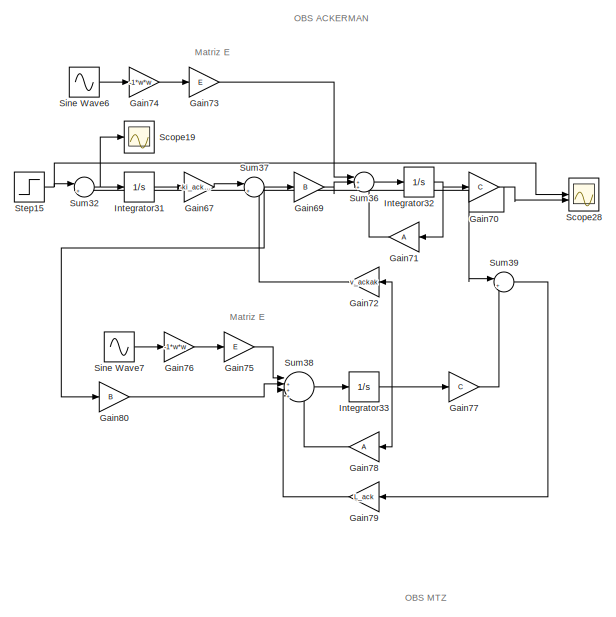
[diagram: root canvas - part 1/8, top left region]
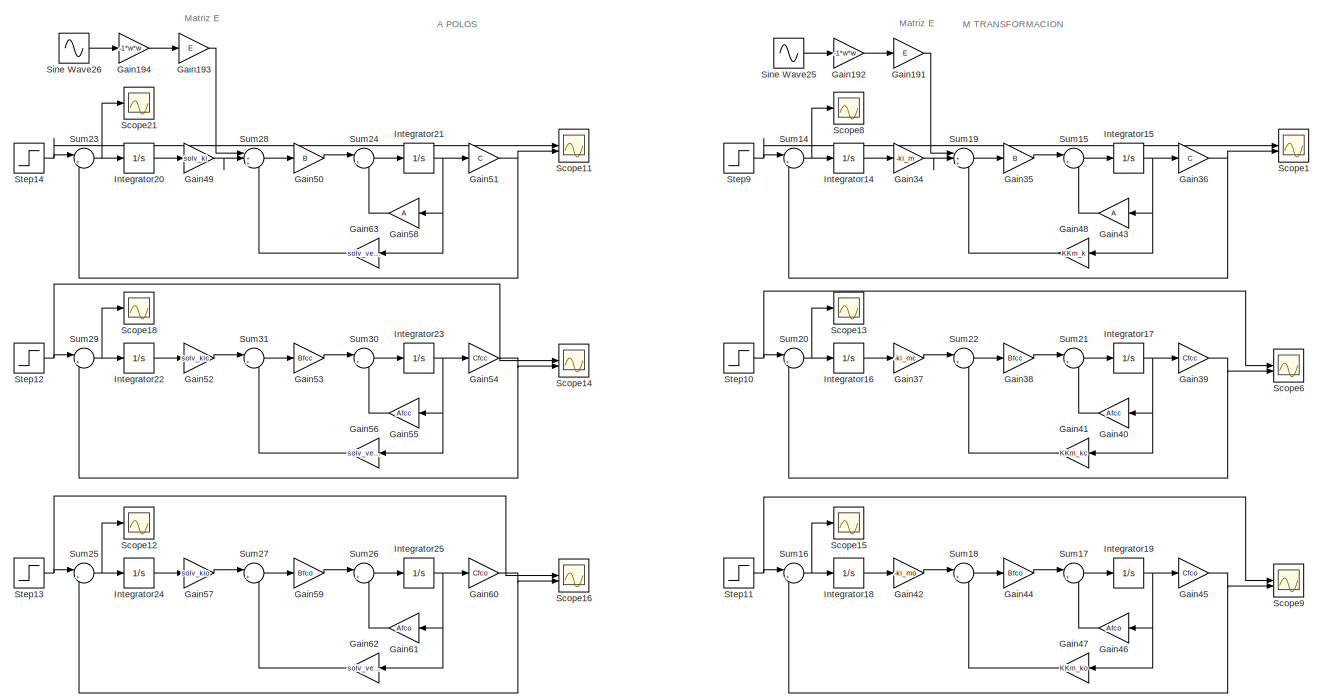
[diagram: root canvas - part 2/8, top center region]
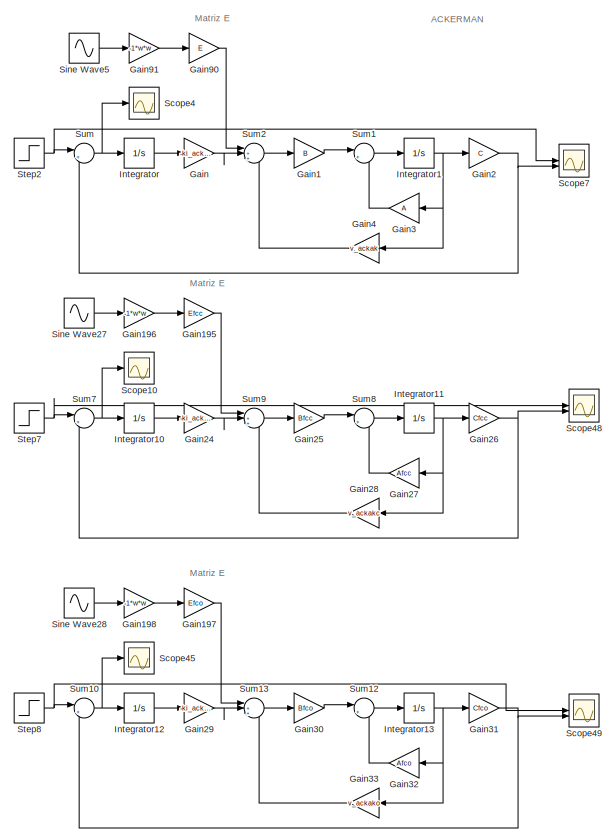
[diagram: root canvas - part 3/8, top center region]
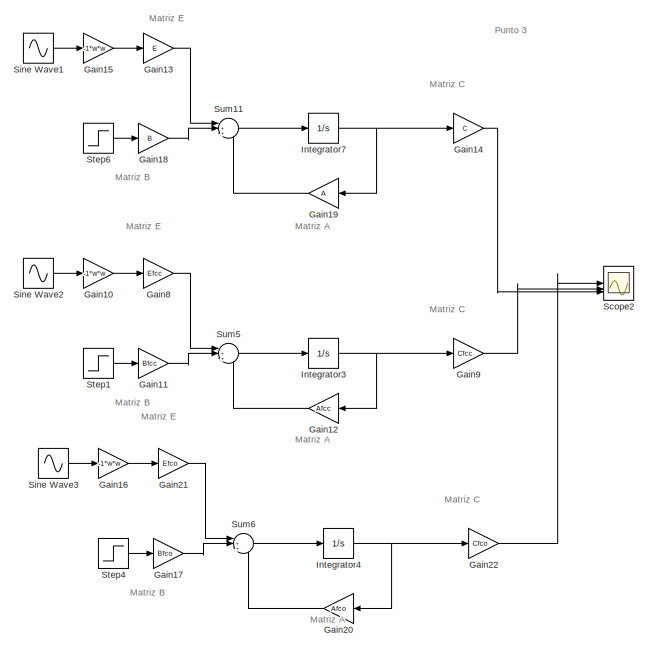
[diagram: root canvas - part 4/8, top right region]
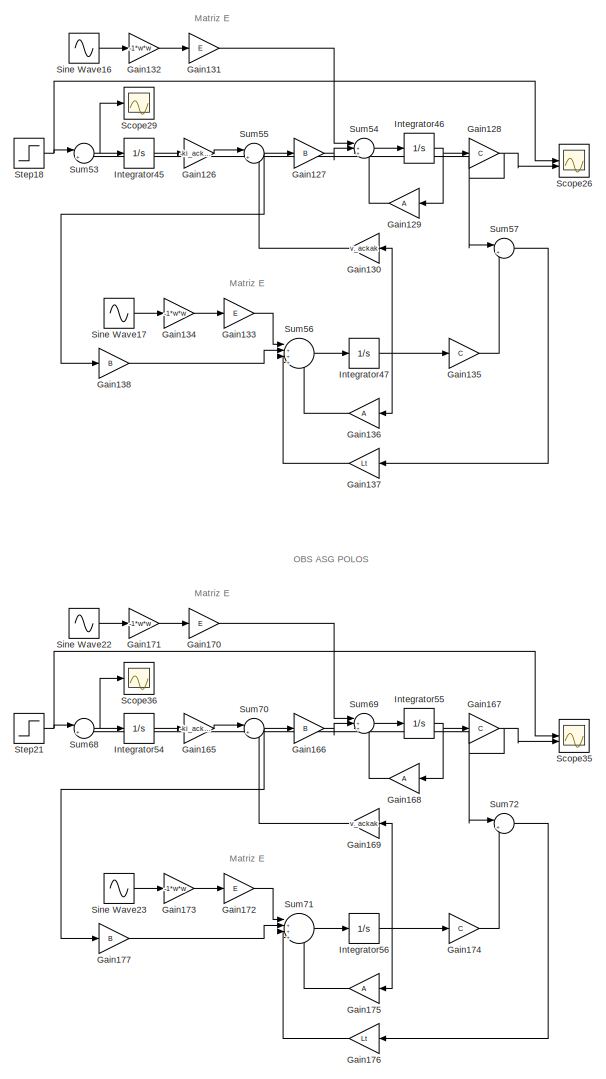
[diagram: root canvas - part 5/8, bottom left region]
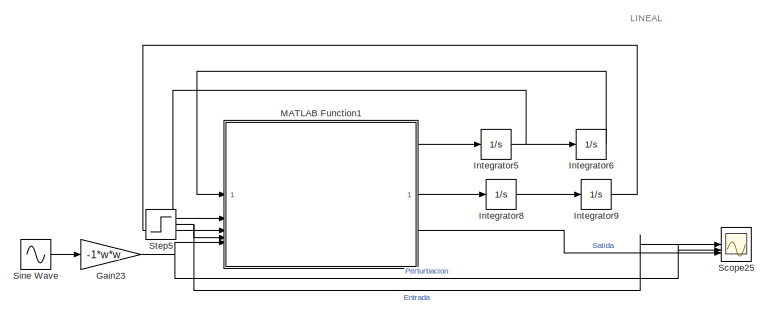
[diagram: root canvas - part 6/8, middle right region]
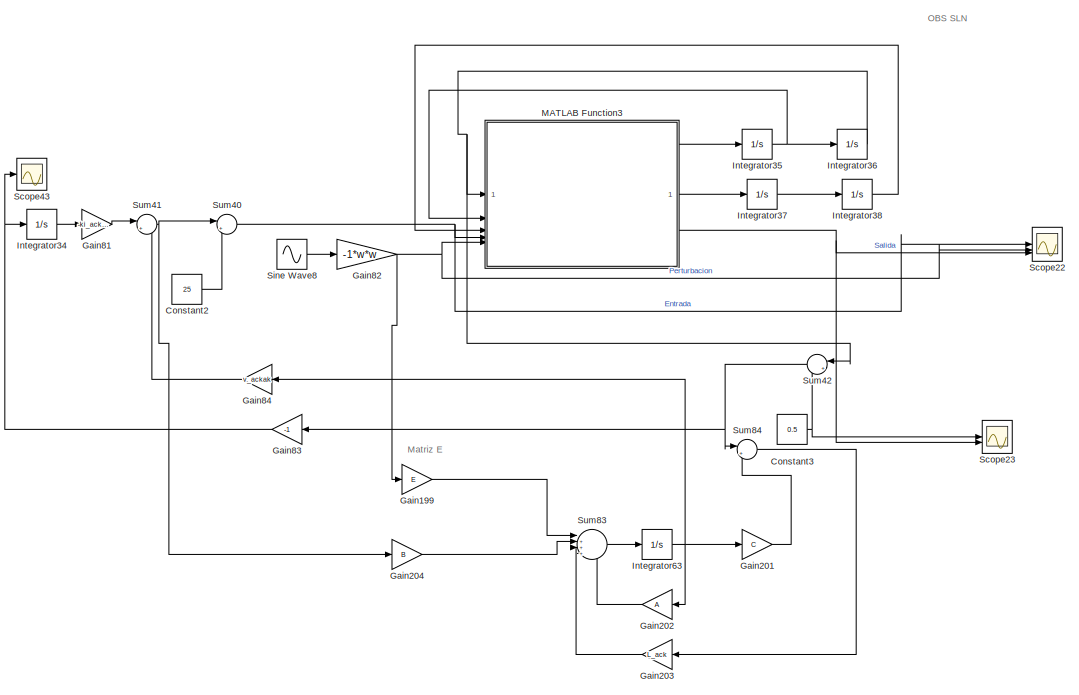
[diagram: root canvas - part 7/8, bottom center region]
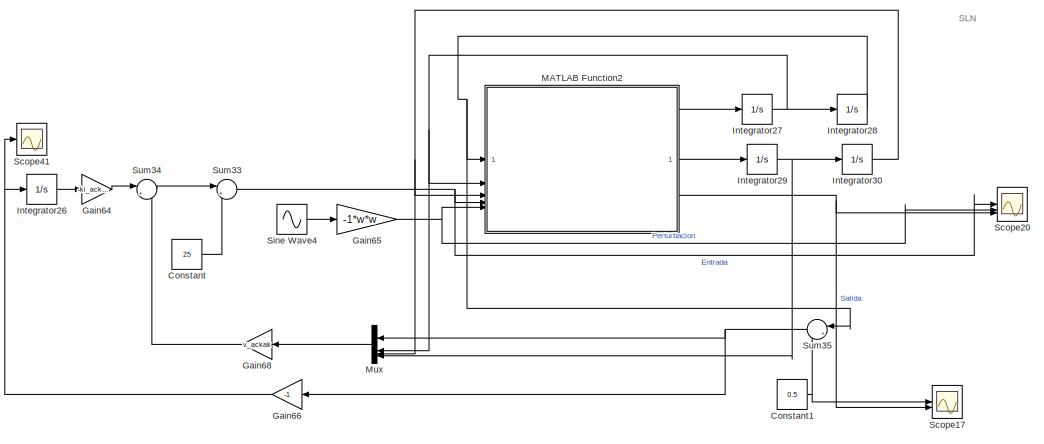
[diagram: root canvas - part 8/8, bottom left region]
MODEL slx_101e63c1fc20
KIND model
CONFIG AbsTol = auto
CONFIG EnableMultiTasking = off
CONFIG FixedStep = auto
CONFIG MaxStep = auto
CONFIG MinStep = auto
CONFIG RelTol = 1e-3
CONFIG SampleTimeConstraint = Unconstrained
CONFIG SolverName = VariableStepAuto
CONFIG StartTime = 0.0
CONFIG StopTime = 10
BLOCK [Constant] Constant
  Value = 25
BLOCK [Constant] Constant1
  Value = 0.5
BLOCK [Constant] Constant2
  Value = 25
BLOCK [Constant] Constant3
  Value = 0.5
BLOCK [Gain] Gain
  Gain = -ki_ackak
BLOCK [Gain] Gain1
  Gain = B
  Multiplication = Matrix(K*u)
BLOCK [Gain] Gain10
  Gain = -1*w*w
BLOCK [Gain] Gain11
  Gain = Bfcc
  Multiplication = Matrix(K*u)
BLOCK [Gain] Gain12
  Gain = Afcc
  Multiplication = Matrix(K*u)
  NameLocation = top
BLOCK [Gain] Gain126
  Gain = -ki_ackak
BLOCK [Gain] Gain127
  Gain = B
  Multiplication = Matrix(K*u)
BLOCK [Gain] Gain128
  Gain = C
  Multiplication = Matrix(K*u)
BLOCK [Gain] Gain129
  Gain = A
  Multiplication = Matrix(K*u)
  NameLocation = top
BLOCK [Gain] Gain13
  Gain = E
  Multiplication = Matrix(K*u)
BLOCK [Gain] Gain130
  Gain = v_ackak
  Multiplication = Matrix(K*u)
  NameLocation = top
BLOCK [Gain] Gain131
  Gain = E
  Multiplication = Matrix(K*u)
BLOCK [Gain] Gain132
  Gain = -1*w*w
BLOCK [Gain] Gain133
  Gain = E
  Multiplication = Matrix(K*u)
BLOCK [Gain] Gain134
  Gain = -1*w*w
BLOCK [Gain] Gain135
  Gain = C
  Multiplication = Matrix(K*u)
BLOCK [Gain] Gain136
  Gain = A
  Multiplication = Matrix(K*u)
  NameLocation = top
BLOCK [Gain] Gain137
  Gain = Lt
  Multiplication = Matrix(K*u)
  NameLocation = top
BLOCK [Gain] Gain138
  Gain = B
  Multiplication = Matrix(K*u)
BLOCK [Gain] Gain14
  Gain = C
  Multiplication = Matrix(K*u)
BLOCK [Gain] Gain15
  Gain = -1*w*w
BLOCK [Gain] Gain16
  Gain = -1*w*w
BLOCK [Gain] Gain165
  Gain = -ki_ackak
BLOCK [Gain] Gain166
  Gain = B
  Multiplication = Matrix(K*u)
BLOCK [Gain] Gain167
  Gain = C
  Multiplication = Matrix(K*u)
BLOCK [Gain] Gain168
  Gain = A
  Multiplication = Matrix(K*u)
  NameLocation = top
BLOCK [Gain] Gain169
  Gain = v_ackak
  Multiplication = Matrix(K*u)
  NameLocation = top
BLOCK [Gain] Gain17
  Gain = Bfco
  Multiplication = Matrix(K*u)
BLOCK [Gain] Gain170
  Gain = E
  Multiplication = Matrix(K*u)
BLOCK [Gain] Gain171
  Gain = -1*w*w
BLOCK [Gain] Gain172
  Gain = E
  Multiplication = Matrix(K*u)
BLOCK [Gain] Gain173
  Gain = -1*w*w
BLOCK [Gain] Gain174
  Gain = C
  Multiplication = Matrix(K*u)
BLOCK [Gain] Gain175
  Gain = A
  Multiplication = Matrix(K*u)
  NameLocation = top
BLOCK [Gain] Gain176
  Gain = Lt
  Multiplication = Matrix(K*u)
  NameLocation = top
BLOCK [Gain] Gain177
  Gain = B
  Multiplication = Matrix(K*u)
BLOCK [Gain] Gain18
  Gain = B
  Multiplication = Matrix(K*u)
BLOCK [Gain] Gain19
  Gain = A
  Multiplication = Matrix(K*u)
  NameLocation = top
BLOCK [Gain] Gain191
  Gain = E
  Multiplication = Matrix(K*u)
BLOCK [Gain] Gain192
  Gain = -1*w*w
BLOCK [Gain] Gain193
  Gain = E
  Multiplication = Matrix(K*u)
BLOCK [Gain] Gain194
  Gain = -1*w*w
BLOCK [Gain] Gain195
  Gain = Efcc
  Multiplication = Matrix(K*u)
BLOCK [Gain] Gain196
  Gain = -1*w*w
BLOCK [Gain] Gain197
  Gain = Efco
  Multiplication = Matrix(K*u)
BLOCK [Gain] Gain198
  Gain = -1*w*w
BLOCK [Gain] Gain199
  Gain = E
  Multiplication = Matrix(K*u)
BLOCK [Gain] Gain2
  Gain = C
  Multiplication = Matrix(K*u)
BLOCK [Gain] Gain20
  Gain = Afco
  Multiplication = Matrix(K*u)
  NameLocation = top
BLOCK [Gain] Gain201
  Gain = C
  Multiplication = Matrix(K*u)
BLOCK [Gain] Gain202
  Gain = A
  Multiplication = Matrix(K*u)
  NameLocation = top
BLOCK [Gain] Gain203
  Gain = L_ack
  Multiplication = Matrix(K*u)
  NameLocation = top
BLOCK [Gain] Gain204
  Gain = B
  Multiplication = Matrix(K*u)
BLOCK [Gain] Gain21
  Gain = Efco
  Multiplication = Matrix(K*u)
BLOCK [Gain] Gain22
  Gain = Cfco
  Multiplication = Matrix(K*u)
BLOCK [Gain] Gain23
  Gain = -1*w*w
BLOCK [Gain] Gain24
  Gain = -ki_ackakc
BLOCK [Gain] Gain25
  Gain = Bfcc
  Multiplication = Matrix(K*u)
BLOCK [Gain] Gain26
  Gain = Cfcc
  Multiplication = Matrix(K*u)
BLOCK [Gain] Gain27
  Gain = Afcc
  Multiplication = Matrix(K*u)
  NameLocation = top
BLOCK [Gain] Gain28
  Gain = v_ackakc
  Multiplication = Matrix(K*u)
  NameLocation = top
BLOCK [Gain] Gain29
  Gain = -ki_ackako
BLOCK [Gain] Gain3
  Gain = A
  Multiplication = Matrix(K*u)
  NameLocation = top
BLOCK [Gain] Gain30
  Gain = Bfco
  Multiplication = Matrix(K*u)
BLOCK [Gain] Gain31
  Gain = Cfco
  Multiplication = Matrix(K*u)
BLOCK [Gain] Gain32
  Gain = Afco
  Multiplication = Matrix(K*u)
  NameLocation = top
BLOCK [Gain] Gain33
  Gain = v_ackako
  Multiplication = Matrix(K*u)
  NameLocation = top
BLOCK [Gain] Gain34
  Gain = -ki_m
BLOCK [Gain] Gain35
  Gain = B
  Multiplication = Matrix(K*u)
BLOCK [Gain] Gain36
  Gain = C
  Multiplication = Matrix(K*u)
BLOCK [Gain] Gain37
  Gain = -ki_mc
BLOCK [Gain] Gain38
  Gain = Bfcc
  Multiplication = Matrix(K*u)
BLOCK [Gain] Gain39
  Gain = Cfcc
  Multiplication = Matrix(K*u)
BLOCK [Gain] Gain4
  Gain = v_ackak
  Multiplication = Matrix(K*u)
  NameLocation = top
BLOCK [Gain] Gain40
  Gain = Afcc
  Multiplication = Matrix(K*u)
  NameLocation = top
BLOCK [Gain] Gain41
  Gain = KKm_kc
  Multiplication = Matrix(K*u)
  NameLocation = top
BLOCK [Gain] Gain42
  Gain = -ki_mo
BLOCK [Gain] Gain43
  Gain = A
  Multiplication = Matrix(K*u)
  NameLocation = top
BLOCK [Gain] Gain44
  Gain = Bfco
  Multiplication = Matrix(K*u)
BLOCK [Gain] Gain45
  Gain = Cfco
  Multiplication = Matrix(K*u)
BLOCK [Gain] Gain46
  Gain = Afco
  Multiplication = Matrix(K*u)
  NameLocation = top
BLOCK [Gain] Gain47
  Gain = KKm_ko
  Multiplication = Matrix(K*u)
  NameLocation = top
BLOCK [Gain] Gain48
  Gain = KKm_k
  Multiplication = Matrix(K*u)
  NameLocation = top
BLOCK [Gain] Gain49
  Gain = solv_ki
BLOCK [Gain] Gain50
  Gain = B
  Multiplication = Matrix(K*u)
BLOCK [Gain] Gain51
  Gain = C
  Multiplication = Matrix(K*u)
BLOCK [Gain] Gain52
  Gain = solv_kic
BLOCK [Gain] Gain53
  Gain = Bfcc
  Multiplication = Matrix(K*u)
BLOCK [Gain] Gain54
  Gain = Cfcc
  Multiplication = Matrix(K*u)
BLOCK [Gain] Gain55
  Gain = Afcc
  Multiplication = Matrix(K*u)
  NameLocation = top
BLOCK [Gain] Gain56
  Gain = solv_vectorc
  Multiplication = Matrix(K*u)
  NameLocation = top
BLOCK [Gain] Gain57
  Gain = solv_kio
BLOCK [Gain] Gain58
  Gain = A
  Multiplication = Matrix(K*u)
  NameLocation = top
BLOCK [Gain] Gain59
  Gain = Bfco
  Multiplication = Matrix(K*u)
BLOCK [Gain] Gain60
  Gain = Cfco
  Multiplication = Matrix(K*u)
BLOCK [Gain] Gain61
  Gain = Afco
  Multiplication = Matrix(K*u)
  NameLocation = top
BLOCK [Gain] Gain62
  Gain = solv_vectoro
  Multiplication = Matrix(K*u)
  NameLocation = top
BLOCK [Gain] Gain63
  Gain = solv_vector
  Multiplication = Matrix(K*u)
  NameLocation = top
BLOCK [Gain] Gain64
  Gain = -ki_ackak
BLOCK [Gain] Gain65
  Gain = -1*w*w
BLOCK [Gain] Gain66
  Gain = -1
  NameLocation = top
BLOCK [Gain] Gain67
  Gain = -ki_ackak
BLOCK [Gain] Gain68
  Gain = v_ackak
  Multiplication = Matrix(K*u)
  NameLocation = top
BLOCK [Gain] Gain69
  Gain = B
  Multiplication = Matrix(K*u)
BLOCK [Gain] Gain70
  Gain = C
  Multiplication = Matrix(K*u)
BLOCK [Gain] Gain71
  Gain = A
  Multiplication = Matrix(K*u)
  NameLocation = top
BLOCK [Gain] Gain72
  Gain = v_ackak
  Multiplication = Matrix(K*u)
  NameLocation = top
BLOCK [Gain] Gain73
  Gain = E
  Multiplication = Matrix(K*u)
BLOCK [Gain] Gain74
  Gain = -1*w*w
BLOCK [Gain] Gain75
  Gain = E
  Multiplication = Matrix(K*u)
BLOCK [Gain] Gain76
  Gain = -1*w*w
BLOCK [Gain] Gain77
  Gain = C
  Multiplication = Matrix(K*u)
BLOCK [Gain] Gain78
  Gain = A
  Multiplication = Matrix(K*u)
  NameLocation = top
BLOCK [Gain] Gain79
  Gain = L_ack
  Multiplication = Matrix(K*u)
  NameLocation = top
BLOCK [Gain] Gain8
  Gain = Efcc
  Multiplication = Matrix(K*u)
BLOCK [Gain] Gain80
  Gain = B
  Multiplication = Matrix(K*u)
BLOCK [Gain] Gain81
  Gain = -ki_ackak
BLOCK [Gain] Gain82
  Gain = -1*w*w
BLOCK [Gain] Gain83
  Gain = -1
  NameLocation = top
BLOCK [Gain] Gain84
  Gain = v_ackak
  Multiplication = Matrix(K*u)
  NameLocation = top
BLOCK [Gain] Gain9
  Gain = Cfcc
  Multiplication = Matrix(K*u)
BLOCK [Gain] Gain90
  Gain = E
  Multiplication = Matrix(K*u)
BLOCK [Gain] Gain91
  Gain = -1*w*w
BLOCK [Integrator] Integrator
BLOCK [Integrator] Integrator1
BLOCK [Integrator] Integrator10
BLOCK [Integrator] Integrator11
BLOCK [Integrator] Integrator12
BLOCK [Integrator] Integrator13
BLOCK [Integrator] Integrator14
BLOCK [Integrator] Integrator15
BLOCK [Integrator] Integrator16
BLOCK [Integrator] Integrator17
BLOCK [Integrator] Integrator18
BLOCK [Integrator] Integrator19
BLOCK [Integrator] Integrator20
BLOCK [Integrator] Integrator21
BLOCK [Integrator] Integrator22
BLOCK [Integrator] Integrator23
BLOCK [Integrator] Integrator24
BLOCK [Integrator] Integrator25
BLOCK [Integrator] Integrator26
BLOCK [Integrator] Integrator27
BLOCK [Integrator] Integrator28
BLOCK [Integrator] Integrator29
BLOCK [Integrator] Integrator3
BLOCK [Integrator] Integrator30
BLOCK [Integrator] Integrator31
BLOCK [Integrator] Integrator32
BLOCK [Integrator] Integrator33
BLOCK [Integrator] Integrator34
BLOCK [Integrator] Integrator35
BLOCK [Integrator] Integrator36
  InitialCondition = 0.49
BLOCK [Integrator] Integrator37
BLOCK [Integrator] Integrator38
BLOCK [Integrator] Integrator4
BLOCK [Integrator] Integrator45
BLOCK [Integrator] Integrator46
BLOCK [Integrator] Integrator47
BLOCK [Integrator] Integrator5
BLOCK [Integrator] Integrator54
BLOCK [Integrator] Integrator55
BLOCK [Integrator] Integrator56
BLOCK [Integrator] Integrator6
BLOCK [Integrator] Integrator63
  InitialCondition = [0.49 0 0 0]
BLOCK [Integrator] Integrator7
BLOCK [Integrator] Integrator8
BLOCK [Integrator] Integrator9
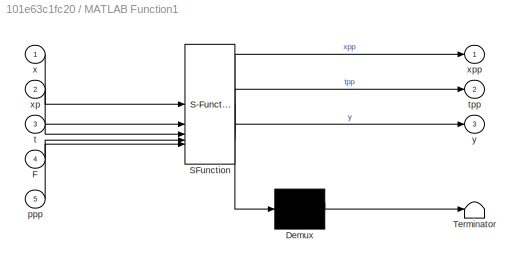
BLOCK [SubSystem] MATLAB Function1
  ErrorFcn = Stateflow.Translate.translate
  PermitHierarchicalResolution = ExplicitOnly
  SFBlockType = MATLAB Function
  TreatAsAtomicUnit = on
BLOCK [Demux] MATLAB Function1/ Demux 
  Outputs = 1
BLOCK [S-Function] MATLAB Function1/ SFunction 
  EnableBusSupport = off
  FunctionName = sf_sfun
  PortCounts = [5 4]
  SFcnIsStateOwnerBlock = off
  SFunctionDeploymentMode = off
  Tag = Stateflow S-Function 1
BLOCK [Terminator] MATLAB Function1/ Terminator 
BLOCK [Inport] MATLAB Function1/F
  Port = 4
BLOCK [Inport] MATLAB Function1/ppp
  Port = 5
BLOCK [Inport] MATLAB Function1/t
  Port = 3
BLOCK [Outport] MATLAB Function1/tpp
  Port = 2
BLOCK [Inport] MATLAB Function1/x
BLOCK [Inport] MATLAB Function1/xp
  Port = 2
BLOCK [Outport] MATLAB Function1/xpp
BLOCK [Outport] MATLAB Function1/y
  Port = 3
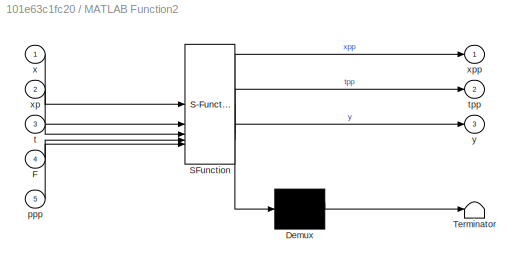
BLOCK [SubSystem] MATLAB Function2
  ErrorFcn = Stateflow.Translate.translate
  PermitHierarchicalResolution = ExplicitOnly
  SFBlockType = MATLAB Function
  TreatAsAtomicUnit = on
BLOCK [Demux] MATLAB Function2/ Demux 
  Outputs = 1
BLOCK [S-Function] MATLAB Function2/ SFunction 
  EnableBusSupport = off
  FunctionName = sf_sfun
  PortCounts = [5 4]
  SFcnIsStateOwnerBlock = off
  SFunctionDeploymentMode = off
  Tag = Stateflow S-Function 2
BLOCK [Terminator] MATLAB Function2/ Terminator 
BLOCK [Inport] MATLAB Function2/F
  Port = 4
BLOCK [Inport] MATLAB Function2/ppp
  Port = 5
BLOCK [Inport] MATLAB Function2/t
  Port = 3
BLOCK [Outport] MATLAB Function2/tpp
  Port = 2
BLOCK [Inport] MATLAB Function2/x
BLOCK [Inport] MATLAB Function2/xp
  Port = 2
BLOCK [Outport] MATLAB Function2/xpp
BLOCK [Outport] MATLAB Function2/y
  Port = 3
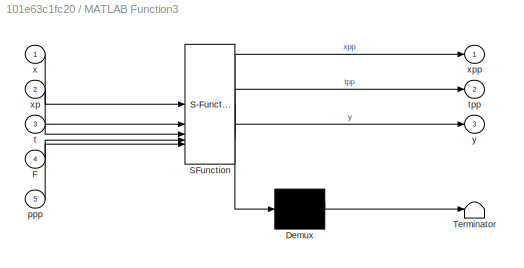
BLOCK [SubSystem] MATLAB Function3
  ErrorFcn = Stateflow.Translate.translate
  PermitHierarchicalResolution = ExplicitOnly
  SFBlockType = MATLAB Function
  TreatAsAtomicUnit = on
BLOCK [Demux] MATLAB Function3/ Demux 
  Outputs = 1
BLOCK [S-Function] MATLAB Function3/ SFunction 
  EnableBusSupport = off
  FunctionName = sf_sfun
  PortCounts = [5 4]
  SFcnIsStateOwnerBlock = off
  SFunctionDeploymentMode = off
  Tag = Stateflow S-Function 3
BLOCK [Terminator] MATLAB Function3/ Terminator 
BLOCK [Inport] MATLAB Function3/F
  Port = 4
BLOCK [Inport] MATLAB Function3/ppp
  Port = 5
BLOCK [Inport] MATLAB Function3/t
  Port = 3
BLOCK [Outport] MATLAB Function3/tpp
  Port = 2
BLOCK [Inport] MATLAB Function3/x
BLOCK [Inport] MATLAB Function3/xp
  Port = 2
BLOCK [Outport] MATLAB Function3/xpp
BLOCK [Outport] MATLAB Function3/y
  Port = 3
BLOCK [Mux] Mux
  DisplayOption = bar
  NameLocation = top
BLOCK [Scope] Scope1
  ActiveDisplayYMaximum = 0.031291334113195061
  ActiveDisplayYMinimum = -0.003476814901466117
  DataLoggingVariableName = ScopeData5
  Floating = off
  GraphicalSettings = {"Style":{"BackgroundColor":[1,1,1],"AxesColor":[1,1,1],"LabelsColor":[0.14901960784313725,0.14901960784313725,0.14901960784313725],"PreserveColors":false,"Visible":[true],"LineStyle":["-"],"LineWidth":[1.5],"BarWidth":[0.9],"LineColor":[[1,0,0]],"LineFaceAlpha":[1],"LineEdgeAlpha":[1],"Marker":["none"],"FontSize":8.5,"LineTrueColor":[[1,0,0]],"ChannelNames":[""],"DefaultLegendLabel":["Transfer Fc...<+1944ch>  <repeated x20 — deduplicated; at blocks: Scope1, Scope10, Scope12, Scope13, Scope14, Scope15, Scope16, Scope18, Scope19, Scope21, Scope29, Scope36, Scope41, Scope43, Scope45, Scope48, +4 more>
  MultipleDisplayCache = [{"MaxYLimMag":0.031291334113195061,"MaxYLimReal":0.031291334113195061,"MinYLimMag":0,"MinYLimReal":-0.003476814901466117,"PlotAsMagnitudePhase":false,"ShowGrid":true,"ShowLegend":true,"Title":"%<SignalLabel>","YLabel":""}]  <repeated x21 — deduplicated; at blocks: Scope1, Scope10, Scope12, Scope13, Scope14, Scope15, Scope16, Scope18, Scope19, Scope21, Scope29, Scope35, Scope36, Scope41, Scope43, Scope45, +5 more>
  NumInputPorts = 2
  ScopeFrameLocation = window
  ShowLegend = on
  WasSavedAsWebScope = on
  WindowPosition = [488.000000,222.000000,560.000000,420.000000,]
BLOCK [Scope] Scope10
  ActiveDisplayYMaximum = 0.031291334113195061
  ActiveDisplayYMinimum = -0.003476814901466117
  DataLoggingVariableName = ScopeData8
  Floating = off
  NumInputPorts = 1
  ScopeFrameLocation = window
  ShowLegend = on
  WasSavedAsWebScope = on
  WindowPosition = [488.000000,222.000000,560.000000,420.000000,]
BLOCK [Scope] Scope11
  ActiveDisplayYMaximum = 1.2431567136625485
  ActiveDisplayYMinimum = -0.13816841713158609
  DataLoggingVariableName = ScopeData10
  Floating = off
  GraphicalSettings = {"AxesScalingProperties":{"AlignXAxis":"Center","AlignYAxis":"Center","AutoScaleXAxisLimits":false,"AxesScaling":"Manual","AxesScalingNumUpdates":10,"ExpandOnly":true,"ScaleAxesLimitsAtStop":false,"XAxisDataRange":100,"YAxisDataRange":80},"DisplayProperties":{"ColorOrder":["auto","auto","auto","auto","auto","auto","auto","auto","auto","auto","auto","auto","auto","auto","auto","auto","auto","auto",...<+2329ch>
  MultipleDisplayCache = [{"MaxYLimMag":1.2431567136625485,"MaxYLimReal":1.2431567136625485,"MinYLimMag":0,"MinYLimReal":-0.13816841713158609,"PlotAsMagnitudePhase":false,"ShowGrid":true,"ShowLegend":true,"Title":"%<SignalLabel>","YLabel":""}]
  NumInputPorts = 2
  ScopeFrameLocation = window
  ShowLegend = on
  WasSavedAsWebScope = on
  WindowPosition = [488.000000,222.000000,560.000000,420.000000,]
BLOCK [Scope] Scope12
  ActiveDisplayYMaximum = 0.031291334113195061
  ActiveDisplayYMinimum = -0.003476814901466117
  DataLoggingVariableName = ScopeData11
  Floating = off
  NumInputPorts = 1
  ScopeFrameLocation = window
  ShowLegend = on
  WasSavedAsWebScope = on
  WindowPosition = [488.000000,222.000000,560.000000,420.000000,]
BLOCK [Scope] Scope13
  ActiveDisplayYMaximum = 0.031291334113195061
  ActiveDisplayYMinimum = -0.003476814901466117
  DataLoggingVariableName = ScopeData12
  Floating = off
  NumInputPorts = 1
  ScopeFrameLocation = window
  ShowLegend = on
  WasSavedAsWebScope = on
  WindowPosition = [488.000000,222.000000,560.000000,420.000000,]
BLOCK [Scope] Scope14
  ActiveDisplayYMaximum = 0.031291334113195061
  ActiveDisplayYMinimum = -0.003476814901466117
  DataLoggingVariableName = ScopeData13
  Floating = off
  NumInputPorts = 2
  ScopeFrameLocation = window
  ShowLegend = on
  WasSavedAsWebScope = on
  WindowPosition = [488.000000,222.000000,560.000000,420.000000,]
BLOCK [Scope] Scope15
  ActiveDisplayYMaximum = 0.031291334113195061
  ActiveDisplayYMinimum = -0.003476814901466117
  DataLoggingVariableName = ScopeData14
  Floating = off
  NumInputPorts = 1
  ScopeFrameLocation = window
  ShowLegend = on
  WasSavedAsWebScope = on
  WindowPosition = [488.000000,222.000000,560.000000,420.000000,]
BLOCK [Scope] Scope16
  ActiveDisplayYMaximum = 0.031291334113195061
  ActiveDisplayYMinimum = -0.003476814901466117
  DataLoggingVariableName = ScopeData15
  Floating = off
  NumInputPorts = 2
  ScopeFrameLocation = window
  ShowLegend = on
  WasSavedAsWebScope = on
  WindowPosition = [488.000000,222.000000,560.000000,420.000000,]
BLOCK [Scope] Scope17
  ActiveDisplayYMaximum = 2.1401377093054168
  ActiveDisplayYMinimum = -0.23779307881171294
  DataLoggingVariableName = ScopeData16
  Floating = off
  GraphicalSettings = {"Style":{"BackgroundColor":[1,1,1],"AxesColor":[1,1,1],"LabelsColor":[0.14901960784313725,0.14901960784313725,0.14901960784313725],"PreserveColors":false,"Visible":[true,true],"LineStyle":["-","-"],"LineWidth":[1.5,1.5],"BarWidth":[0.9,0.9],"LineColor":[[1,0,0],"auto"],"LineFaceAlpha":[1,1],"LineEdgeAlpha":[1,1],"Marker":["none","none"],"FontSize":8.5,"LineTrueColor":[[1,0,0],[0.06666666666666667...<+1975ch>
  MultipleDisplayCache = [{"MaxYLimMag":2.1401377093054168,"MaxYLimReal":2.1401377093054168,"MinYLimMag":0,"MinYLimReal":-0.23779307881171294,"PlotAsMagnitudePhase":false,"ShowGrid":true,"ShowLegend":true,"Title":"%<SignalLabel>","YLabel":""}]
  NumInputPorts = 2
  ScopeFrameLocation = window
  ShowLegend = on
  WasSavedAsWebScope = on
  WindowPosition = [488.000000,222.000000,560.000000,420.000000,]
BLOCK [Scope] Scope18
  ActiveDisplayYMaximum = 0.031291334113195061
  ActiveDisplayYMinimum = -0.003476814901466117
  DataLoggingVariableName = ScopeData17
  Floating = off
  NumInputPorts = 1
  ScopeFrameLocation = window
  ShowLegend = on
  WasSavedAsWebScope = on
  WindowPosition = [488.000000,222.000000,560.000000,420.000000,]
BLOCK [Scope] Scope19
  ActiveDisplayYMaximum = 0.031291334113195061
  ActiveDisplayYMinimum = -0.003476814901466117
  DataLoggingVariableName = ScopeData18
  Floating = off
  NumInputPorts = 1
  ScopeFrameLocation = window
  ShowLegend = on
  WasSavedAsWebScope = on
  WindowPosition = [488.000000,222.000000,560.000000,420.000000,]
BLOCK [Scope] Scope2
  ActiveDisplayYMaximum = 0.11682406199814867
  ActiveDisplayYMinimum = -0.084773985516782557
  DataLoggingVariableName = ScopeData2
  Floating = off
  GraphicalSettings = {"AxesScalingProperties":{"AlignXAxis":"Center","AlignYAxis":"Center","AutoScaleXAxisLimits":false,"AxesScaling":"Manual","AxesScalingNumUpdates":10,"ExpandOnly":true,"ScaleAxesLimitsAtStop":false,"XAxisDataRange":100,"YAxisDataRange":80},"DisplayProperties":{"ColorOrder":["auto","auto","auto","auto","auto","auto","auto","auto","auto","auto","auto","auto","auto","auto","auto","auto","auto","auto",...<+2076ch>
  MultipleDisplayCache = [{"MaxYLimMag":0.11682406199814867,"MaxYLimReal":0.11682406199814867,"MinYLimMag":0,"MinYLimReal":-0.084773985516782557,"PlotAsMagnitudePhase":false,"ShowGrid":true,"ShowLegend":true,"Title":"%<SignalLabel>","YLabel":""}]
  NumInputPorts = 3
  ScopeFrameLocation = window
  ShowLegend = on
  WasSavedAsWebScope = on
  WindowPosition = [761.000000,238.000000,560.000000,420.000000,]
BLOCK [Scope] Scope20
  ActiveDisplayYMaximum = 21624.503578836546
  ActiveDisplayYMinimum = -6730.6239526479867
  DataLoggingVariableName = ScopeData19
  Floating = off
  GraphicalSettings = {"Style":{"BackgroundColor":[1,1,1],"AxesColor":[1,1,1],"LabelsColor":[0.14901960784313725,0.14901960784313725,0.14901960784313725],"PreserveColors":false,"Visible":[true,true,true],"LineStyle":["-","-","-"],"LineWidth":[1.5,1.5,1.5],"BarWidth":[0.9,0.9,0.9],"LineColor":[[1,0,0],"auto","auto"],"LineFaceAlpha":[1,1,1],"LineEdgeAlpha":[1,1,1],"Marker":["none","none","none"],"FontSize":8.5,"LineTrueC...<+2080ch>
  MultipleDisplayCache = [{"MaxYLimMag":21624.503578836546,"MaxYLimReal":21624.503578836546,"MinYLimMag":0,"MinYLimReal":-6730.6239526479867,"PlotAsMagnitudePhase":false,"ShowGrid":true,"ShowLegend":true,"Title":"%<SignalLabel>","YLabel":""}]
  NumInputPorts = 3
  ScopeFrameLocation = window
  ShowLegend = on
  WasSavedAsWebScope = on
  WindowPosition = [488.000000,222.000000,560.000000,420.000000,]
BLOCK [Scope] Scope21
  ActiveDisplayYMaximum = 0.031291334113195061
  ActiveDisplayYMinimum = -0.003476814901466117
  DataLoggingVariableName = ScopeData20
  Floating = off
  NumInputPorts = 1
  ScopeFrameLocation = window
  ShowLegend = on
  WasSavedAsWebScope = on
  WindowPosition = [488.000000,222.000000,560.000000,420.000000,]
BLOCK [Scope] Scope22
  ActiveDisplayYMaximum = 1
  ActiveDisplayYMinimum = -1
  DataLoggingVariableName = ScopeData21
  Floating = off
  GraphicalSettings = {"Style":{"BackgroundColor":[1,1,1],"AxesColor":[1,1,1],"LabelsColor":[0.14901960784313725,0.14901960784313725,0.14901960784313725],"PreserveColors":false,"Visible":[true,true,true],"LineStyle":["-","-","-"],"LineWidth":[1.5,1.5,1.5],"BarWidth":[0.9,0.9,0.9],"LineColor":[[1,0,0],"auto","auto"],"LineFaceAlpha":[1,1,1],"LineEdgeAlpha":[1,1,1],"Marker":["none","none","none"],"FontSize":8.5,"LineTrueC...<+2107ch>
  MultipleDisplayCache = [{"MaxYLimMag":1,"MaxYLimReal":1,"MinYLimMag":0,"MinYLimReal":-1,"PlotAsMagnitudePhase":false,"ShowGrid":true,"ShowLegend":true,"Title":"%<SignalLabel>","YLabel":""}]
  NumInputPorts = 3
  ScopeFrameLocation = window
  ShowLegend = on
  WasSavedAsWebScope = on
  WindowPosition = [488.000000,222.000000,560.000000,420.000000,]
BLOCK [Scope] Scope23
  ActiveDisplayYMaximum = 4.8841758745875857E+112
  ActiveDisplayYMinimum = -1.2616224962283068E+113
  DataLoggingVariableName = ScopeData22
  Floating = off
  GraphicalSettings = {"Style":{"BackgroundColor":[1,1,1],"AxesColor":[1,1,1],"LabelsColor":[0.14901960784313725,0.14901960784313725,0.14901960784313725],"PreserveColors":false,"Visible":[true,true],"LineStyle":["-","-"],"LineWidth":[1.5,1.5],"BarWidth":[0.9,0.9],"LineColor":[[1,0,0],"auto"],"LineFaceAlpha":[1,1],"LineEdgeAlpha":[1,1],"Marker":["none","none"],"FontSize":8.5,"LineTrueColor":[[1,0,0],[0.06666666666666667...<+2002ch>
  MultipleDisplayCache = [{"MaxYLimMag":1.05758221158901E+113,"MaxYLimReal":4.8841758745875857E+112,"MinYLimMag":0,"MinYLimReal":-1.2616224962283068E+113,"PlotAsMagnitudePhase":false,"ShowGrid":true,"ShowLegend":true,"Title":"%<SignalLabel>","YLabel":""}]
  NumInputPorts = 2
  ScopeFrameLocation = window
  ShowLegend = on
  WasSavedAsWebScope = on
  WindowPosition = [488.000000,222.000000,560.000000,420.000000,]
BLOCK [Scope] Scope25
  ActiveDisplayYMaximum = 1.2498905504508298
  ActiveDisplayYMinimum = -1.2499459508185906
  DataLoggingVariableName = ScopeData24
  Floating = off
  GraphicalSettings = {"Style":{"BackgroundColor":[1,1,1],"AxesColor":[1,1,1],"LabelsColor":[0.14901960784313725,0.14901960784313725,0.14901960784313725],"PreserveColors":false,"Visible":[true,true,true],"LineStyle":["-","-","-"],"LineWidth":[1.5,1.5,1.5],"BarWidth":[0.9,0.9,0.9],"LineColor":[[1,0,0],"auto","auto"],"LineFaceAlpha":[1,1,1],"LineEdgeAlpha":[1,1,1],"Marker":["none","none","none"],"FontSize":8.5,"LineTrueC...<+2081ch>
  MultipleDisplayCache = [{"MaxYLimMag":1.2499459508185906,"MaxYLimReal":1.2498905504508298,"MinYLimMag":0,"MinYLimReal":-1.2499459508185906,"PlotAsMagnitudePhase":false,"ShowGrid":true,"ShowLegend":true,"Title":"%<SignalLabel>","YLabel":""}]
  NumInputPorts = 3
  ScopeFrameLocation = window
  ShowLegend = on
  WasSavedAsWebScope = on
  WindowPosition = [488.000000,222.000000,560.000000,420.000000,]
BLOCK [Scope] Scope26
  ActiveDisplayYMaximum = 1.2437843122650145
  ActiveDisplayYMinimum = -0.1383306354661899
  DataLoggingVariableName = ScopeData25
  Floating = off
  GraphicalSettings = {"Style":{"BackgroundColor":[1,1,1],"AxesColor":[1,1,1],"LabelsColor":[0.14901960784313725,0.14901960784313725,0.14901960784313725],"PreserveColors":false,"Visible":[true,true],"LineStyle":["-","-"],"LineWidth":[1.5,1.5],"BarWidth":[0.9,0.9],"LineColor":[[1,0,0],[0.06666666666666667,0.44313725490196076,0.7450980392156863]],"LineFaceAlpha":[1,1],"LineEdgeAlpha":[1,1],"Marker":["none","none"],"FontS...<+1925ch>
  MultipleDisplayCache = [{"MaxYLimMag":1.2437843122650145,"MaxYLimReal":1.2437843122650145,"MinYLimMag":0,"MinYLimReal":-0.1383306354661899,"PlotAsMagnitudePhase":false,"ShowGrid":true,"ShowLegend":true,"Title":"%<SignalLabel>","YLabel":""}]
  NumInputPorts = 2
  ScopeFrameLocation = window
  ShowLegend = on
  WasSavedAsWebScope = on
  WindowPosition = [488.000000,222.000000,560.000000,420.000000,]
BLOCK [Scope] Scope28
  ActiveDisplayYMaximum = 1.2437843122646124
  ActiveDisplayYMinimum = -0.1383306354661453
  DataLoggingVariableName = ScopeData27
  Floating = off
  GraphicalSettings = {"Style":{"BackgroundColor":[1,1,1],"AxesColor":[1,1,1],"LabelsColor":[0.14901960784313725,0.14901960784313725,0.14901960784313725],"PreserveColors":false,"Visible":[true,true],"LineStyle":["-","-"],"LineWidth":[1.5,1.5],"BarWidth":[0.9,0.9],"LineColor":[[1,0,0],"auto"],"LineFaceAlpha":[1,1],"LineEdgeAlpha":[1,1],"Marker":["none","none"],"FontSize":8.5,"LineTrueColor":[[1,0,0],[0.06666666666666667...<+1869ch>
  MultipleDisplayCache = [{"MaxYLimMag":1.2437843122646124,"MaxYLimReal":1.2437843122646124,"MinYLimMag":0,"MinYLimReal":-0.1383306354661453,"PlotAsMagnitudePhase":false,"ShowGrid":true,"ShowLegend":true,"Title":"%<SignalLabel>","YLabel":""}]
  NumInputPorts = 2
  ScopeFrameLocation = window
  ShowLegend = on
  WasSavedAsWebScope = on
  WindowPosition = [582.000000,14.000000,560.000000,420.000000,]
BLOCK [Scope] Scope29
  ActiveDisplayYMaximum = 0.031291334113195061
  ActiveDisplayYMinimum = -0.003476814901466117
  DataLoggingVariableName = ScopeData28
  Floating = off
  NumInputPorts = 1
  ScopeFrameLocation = window
  ShowLegend = on
  WasSavedAsWebScope = on
  WindowPosition = [488.000000,222.000000,560.000000,420.000000,]
BLOCK [Scope] Scope35
  ActiveDisplayYMaximum = 0.031291334113195061
  ActiveDisplayYMinimum = -0.003476814901466117
  DataLoggingVariableName = ScopeData34
  Floating = off
  GraphicalSettings = {"Style":{"BackgroundColor":[1,1,1],"AxesColor":[1,1,1],"LabelsColor":[0.14901960784313725,0.14901960784313725,0.14901960784313725],"PreserveColors":false,"Visible":[true,true,true,true,true,true,true],"LineStyle":["-","-","-","-","-","-","-"],"LineWidth":[1.5,1.5,1.5,1.5,1.5,1.5,1.5],"BarWidth":[0.9,0.9,0.9,0.9,0.9,0.9,0.9],"LineColor":[[1,0,0],[0.06666666666666667,0.44313725490196076,0.745098039...<+2456ch>
  NumInputPorts = 2
  ScopeFrameLocation = window
  ShowLegend = on
  WasSavedAsWebScope = on
  WindowPosition = [488.000000,222.000000,560.000000,420.000000,]
BLOCK [Scope] Scope36
  ActiveDisplayYMaximum = 0.031291334113195061
  ActiveDisplayYMinimum = -0.003476814901466117
  DataLoggingVariableName = ScopeData35
  Floating = off
  NumInputPorts = 1
  ScopeFrameLocation = window
  ShowLegend = on
  WasSavedAsWebScope = on
  WindowPosition = [488.000000,222.000000,560.000000,420.000000,]
BLOCK [Scope] Scope4
  ActiveDisplayYMaximum = 1.1381536655853057
  ActiveDisplayYMinimum = -0.2431403233578322
  DataLoggingVariableName = ScopeData4
  Floating = off
  GraphicalSettings = {"Style":{"BackgroundColor":[1,1,1],"AxesColor":[1,1,1],"LabelsColor":[0.14901960784313725,0.14901960784313725,0.14901960784313725],"PreserveColors":false,"Visible":[true,true,true,true],"LineStyle":["-","-","-","-"],"LineWidth":[1.5,1.5,1.5,1.5],"BarWidth":[0.9,0.9,0.9,0.9],"LineColor":[[1,0,0],"auto","auto","auto"],"LineFaceAlpha":[1,1,1,1],"LineEdgeAlpha":[1,1,1,1],"Marker":["none","none","none...<+2176ch>
  MultipleDisplayCache = [{"MaxYLimMag":1.1381536655853057,"MaxYLimReal":1.1381536655853057,"MinYLimMag":0,"MinYLimReal":-0.2431403233578322,"PlotAsMagnitudePhase":false,"ShowGrid":true,"ShowLegend":true,"Title":"%<SignalLabel>","YLabel":""}]
  NumInputPorts = 1
  ScopeFrameLocation = window
  ShowLegend = on
  WasSavedAsWebScope = on
  WindowPosition = [488.000000,222.000000,560.000000,420.000000,]
BLOCK [Scope] Scope41
  ActiveDisplayYMaximum = 0.031291334113195061
  ActiveDisplayYMinimum = -0.003476814901466117
  DataLoggingVariableName = ScopeData40
  Floating = off
  NumInputPorts = 1
  ScopeFrameLocation = window
  ShowLegend = on
  WasSavedAsWebScope = on
  WindowPosition = [488.000000,222.000000,560.000000,420.000000,]
BLOCK [Scope] Scope43
  ActiveDisplayYMaximum = 0.031291334113195061
  ActiveDisplayYMinimum = -0.003476814901466117
  DataLoggingVariableName = ScopeData42
  Floating = off
  NumInputPorts = 1
  ScopeFrameLocation = window
  ShowLegend = on
  WasSavedAsWebScope = on
  WindowPosition = [488.000000,222.000000,560.000000,420.000000,]
BLOCK [Scope] Scope45
  ActiveDisplayYMaximum = 0.031291334113195061
  ActiveDisplayYMinimum = -0.003476814901466117
  DataLoggingVariableName = ScopeData44
  Floating = off
  NumInputPorts = 1
  ScopeFrameLocation = window
  ShowLegend = on
  WasSavedAsWebScope = on
  WindowPosition = [488.000000,222.000000,560.000000,420.000000,]
BLOCK [Scope] Scope48
  ActiveDisplayYMaximum = 0.031291334113195061
  ActiveDisplayYMinimum = -0.003476814901466117
  DataLoggingVariableName = ScopeData47
  Floating = off
  NumInputPorts = 2
  ScopeFrameLocation = window
  ShowLegend = on
  WasSavedAsWebScope = on
  WindowPosition = [488.000000,222.000000,560.000000,420.000000,]
BLOCK [Scope] Scope49
  ActiveDisplayYMaximum = 0.031291334113195061
  ActiveDisplayYMinimum = -0.003476814901466117
  DataLoggingVariableName = ScopeData48
  Floating = off
  NumInputPorts = 2
  ScopeFrameLocation = window
  ShowLegend = on
  WasSavedAsWebScope = on
  WindowPosition = [488.000000,222.000000,560.000000,420.000000,]
BLOCK [Scope] Scope6
  ActiveDisplayYMaximum = 0.031291334113195061
  ActiveDisplayYMinimum = -0.003476814901466117
  DataLoggingVariableName = ScopeData9
  Floating = off
  NumInputPorts = 2
  ScopeFrameLocation = window
  ShowLegend = on
  WasSavedAsWebScope = on
  WindowPosition = [488.000000,222.000000,560.000000,420.000000,]
BLOCK [Scope] Scope7
  ActiveDisplayYMaximum = 1.2431417716821784
  ActiveDisplayYMinimum = -0.13816670050442029
  DataLoggingVariableName = ScopeData6
  Floating = off
  GraphicalSettings = {"Style":{"BackgroundColor":[1,1,1],"AxesColor":[1,1,1],"LabelsColor":[0.14901960784313725,0.14901960784313725,0.14901960784313725],"PreserveColors":false,"Visible":[true,true,true,true,true],"LineStyle":["-","-","-","-","-"],"LineWidth":[1.5,1.5,1.5,1.5,1.5],"BarWidth":[0.9,0.9,0.9,0.9,0.9],"LineColor":[[1,0,0],"auto","auto","auto","auto"],"LineFaceAlpha":[1,1,1,1,1],"LineEdgeAlpha":[1,1,1,1,1],"...<+2301ch>
  MultipleDisplayCache = [{"MaxYLimMag":1.2431417716821784,"MaxYLimReal":1.2431417716821784,"MinYLimMag":0,"MinYLimReal":-0.13816670050442029,"PlotAsMagnitudePhase":false,"ShowGrid":true,"ShowLegend":true,"Title":"%<SignalLabel>","YLabel":""}]
  NumInputPorts = 2
  ScopeFrameLocation = window
  ShowLegend = on
  WasSavedAsWebScope = on
  WindowPosition = [488.000000,222.000000,560.000000,420.000000,]
BLOCK [Scope] Scope8
  ActiveDisplayYMaximum = 0.031291334113195061
  ActiveDisplayYMinimum = -0.003476814901466117
  DataLoggingVariableName = ScopeData7
  Floating = off
  NumInputPorts = 1
  ScopeFrameLocation = window
  ShowLegend = on
  WasSavedAsWebScope = on
  WindowPosition = [488.000000,222.000000,560.000000,420.000000,]
BLOCK [Scope] Scope9
  ActiveDisplayYMaximum = 0.031291334113195061
  ActiveDisplayYMinimum = -0.003476814901466117
  DataLoggingVariableName = ScopeData49
  Floating = off
  NumInputPorts = 2
  ScopeFrameLocation = window
  ShowLegend = on
  WasSavedAsWebScope = on
  WindowPosition = [488.000000,222.000000,560.000000,420.000000,]
BLOCK [Sin] Sine Wave
  Amplitude = amp
  Frequency = w
  SampleTime = 0
BLOCK [Sin] Sine Wave1
  SampleTime = 0
BLOCK [Sin] Sine Wave16
  SampleTime = 0
BLOCK [Sin] Sine Wave17
  SampleTime = 0
BLOCK [Sin] Sine Wave2
  SampleTime = 0
BLOCK [Sin] Sine Wave22
  SampleTime = 0
BLOCK [Sin] Sine Wave23
  SampleTime = 0
BLOCK [Sin] Sine Wave25
  SampleTime = 0
BLOCK [Sin] Sine Wave26
  SampleTime = 0
BLOCK [Sin] Sine Wave27
  SampleTime = 0
BLOCK [Sin] Sine Wave28
  SampleTime = 0
BLOCK [Sin] Sine Wave3
  SampleTime = 0
BLOCK [Sin] Sine Wave4
  Amplitude = amp
  Frequency = w
  SampleTime = 0
BLOCK [Sin] Sine Wave5
  SampleTime = 0
BLOCK [Sin] Sine Wave6
  SampleTime = 0
BLOCK [Sin] Sine Wave7
  SampleTime = 0
BLOCK [Sin] Sine Wave8
  Amplitude = amp
  Frequency = w
  SampleTime = 0
BLOCK [Step] Step1
  SampleTime = 0
  Time = 0
BLOCK [Step] Step10
  SampleTime = 0
  Time = 0
BLOCK [Step] Step11
  SampleTime = 0
BLOCK [Step] Step12
  SampleTime = 0
  Time = 0
BLOCK [Step] Step13
  SampleTime = 0
  Time = 0
BLOCK [Step] Step14
  SampleTime = 0
  Time = 0
BLOCK [Step] Step15
  SampleTime = 0
  Time = 0
BLOCK [Step] Step18
  SampleTime = 0
  Time = 0
BLOCK [Step] Step2
  SampleTime = 0
  Time = 0
BLOCK [Step] Step21
  SampleTime = 0
  Time = 0
BLOCK [Step] Step4
  SampleTime = 0
  Time = 0
BLOCK [Step] Step5
  SampleTime = 0
BLOCK [Step] Step6
  SampleTime = 0
  Time = 0
BLOCK [Step] Step7
  SampleTime = 0
  Time = 0
BLOCK [Step] Step8
  SampleTime = 0
  Time = 0
BLOCK [Step] Step9
  SampleTime = 0
  Time = 0
BLOCK [Sum] Sum
  Inputs = |+-
BLOCK [Sum] Sum1
  Inputs = |++
BLOCK [Sum] Sum10
  Inputs = |+-
BLOCK [Sum] Sum11
  Inputs = |+++
BLOCK [Sum] Sum12
  Inputs = |++
BLOCK [Sum] Sum13
  Inputs = |++-
BLOCK [Sum] Sum14
  Inputs = |+-
BLOCK [Sum] Sum15
  Inputs = |++
BLOCK [Sum] Sum16
  Inputs = |+-
BLOCK [Sum] Sum17
  Inputs = |++
BLOCK [Sum] Sum18
  Inputs = |+-
BLOCK [Sum] Sum19
  Inputs = |++-
BLOCK [Sum] Sum2
  Inputs = |++-
BLOCK [Sum] Sum20
  Inputs = |+-
BLOCK [Sum] Sum21
  Inputs = |++
BLOCK [Sum] Sum22
  Inputs = |+-
BLOCK [Sum] Sum23
  Inputs = |+-
BLOCK [Sum] Sum24
  Inputs = |++
BLOCK [Sum] Sum25
  Inputs = |+-
BLOCK [Sum] Sum26
  Inputs = |++
BLOCK [Sum] Sum27
  Inputs = |+-
BLOCK [Sum] Sum28
  Inputs = |++-
BLOCK [Sum] Sum29
  Inputs = |+-
BLOCK [Sum] Sum30
  Inputs = |++
BLOCK [Sum] Sum31
  Inputs = |+-
BLOCK [Sum] Sum32
  Inputs = |+-
BLOCK [Sum] Sum33
  Inputs = |++
BLOCK [Sum] Sum34
  Inputs = |+-
BLOCK [Sum] Sum35
  Inputs = |+-
  NameLocation = top
BLOCK [Sum] Sum36
  Inputs = |+++
BLOCK [Sum] Sum37
  Inputs = |+-
BLOCK [Sum] Sum38
  Inputs = |++++
BLOCK [Sum] Sum39
  Inputs = |+-
  NameLocation = top
BLOCK [Sum] Sum40
  Inputs = |++
BLOCK [Sum] Sum41
  Inputs = |+-
BLOCK [Sum] Sum42
  Inputs = |+-
  NameLocation = top
BLOCK [Sum] Sum5
  Inputs = |+++
BLOCK [Sum] Sum53
  Inputs = |+-
BLOCK [Sum] Sum54
  Inputs = |+++
BLOCK [Sum] Sum55
  Inputs = |+-
BLOCK [Sum] Sum56
  Inputs = |++++
BLOCK [Sum] Sum57
  Inputs = |+-
  NameLocation = top
BLOCK [Sum] Sum6
  Inputs = |+++
BLOCK [Sum] Sum68
  Inputs = |+-
BLOCK [Sum] Sum69
  Inputs = |+++
BLOCK [Sum] Sum7
  Inputs = |+-
BLOCK [Sum] Sum70
  Inputs = |+-
BLOCK [Sum] Sum71
  Inputs = |++++
BLOCK [Sum] Sum72
  Inputs = |+-
  NameLocation = top
BLOCK [Sum] Sum8
  Inputs = |++
BLOCK [Sum] Sum83
  Inputs = |++++
BLOCK [Sum] Sum84
  Inputs = |+-
BLOCK [Sum] Sum9
  Inputs = |++-
ANNOTATION (root): A POLOS
ANNOTATION (root): ACKERMAN
ANNOTATION (root): LINEAL
ANNOTATION (root): M TRANSFORMACION
ANNOTATION (root): OBS ACKERMAN
ANNOTATION (root): OBS ASG POLOS
ANNOTATION (root): OBS MTZ
ANNOTATION (root): OBS SLN
ANNOTATION (root): Punto 3
ANNOTATION (root): SLN
ANNOTATION (root): Matriz A
ANNOTATION (root): Matriz B
ANNOTATION (root): Matriz C
ANNOTATION (root): Matriz E
NET Constant1:1 -> Scope17:1, Sum35:2
LINE Constant2:1 -> Sum40:2
NET Constant3:1 -> Scope23:1, Sum42:2
LINE Constant:1 -> Sum33:2
LINE Gain10:1 -> Gain8:1
LINE Gain11:1 -> Sum5:2
LINE Gain126:1 -> Sum55:1
LINE Gain127:1 -> Sum54:2
NET Gain128:1 -> Scope26:2, Sum53:2, Sum57:1
LINE Gain129:1 -> Sum54:3
LINE Gain12:1 -> Sum5:3
LINE Gain130:1 -> Sum55:2
LINE Gain131:1 -> Sum54:1
LINE Gain132:1 -> Gain131:1
LINE Gain133:1 -> Sum56:1
LINE Gain134:1 -> Gain133:1
LINE Gain135:1 -> Sum57:2
LINE Gain136:1 -> Sum56:4
LINE Gain137:1 -> Sum56:3
LINE Gain138:1 -> Sum56:2
LINE Gain13:1 -> Sum11:1
LINE Gain14:1 -> Scope2:3
LINE Gain15:1 -> Gain13:1
LINE Gain165:1 -> Sum70:1
LINE Gain166:1 -> Sum69:2
NET Gain167:1 -> Scope35:2, Sum68:2, Sum72:1
LINE Gain168:1 -> Sum69:3
LINE Gain169:1 -> Sum70:2
LINE Gain16:1 -> Gain21:1
LINE Gain170:1 -> Sum69:1
LINE Gain171:1 -> Gain170:1
LINE Gain172:1 -> Sum71:1
LINE Gain173:1 -> Gain172:1
LINE Gain174:1 -> Sum72:2
LINE Gain175:1 -> Sum71:4
LINE Gain176:1 -> Sum71:3
LINE Gain177:1 -> Sum71:2
LINE Gain17:1 -> Sum6:2
LINE Gain18:1 -> Sum11:2
LINE Gain191:1 -> Sum19:1
LINE Gain192:1 -> Gain191:1
LINE Gain193:1 -> Sum28:1
LINE Gain194:1 -> Gain193:1
LINE Gain195:1 -> Sum9:1
LINE Gain196:1 -> Gain195:1
LINE Gain197:1 -> Sum13:1
LINE Gain198:1 -> Gain197:1
LINE Gain199:1 -> Sum83:1
LINE Gain19:1 -> Sum11:3
LINE Gain1:1 -> Sum1:1
LINE Gain201:1 -> Sum84:2
LINE Gain202:1 -> Sum83:4
LINE Gain203:1 -> Sum83:3
LINE Gain204:1 -> Sum83:2
LINE Gain20:1 -> Sum6:3
LINE Gain21:1 -> Sum6:1
LINE Gain22:1 -> Scope2:1
NET Gain23:1 -> MATLAB Function1:5, Scope25:2
LINE Gain24:1 -> Sum9:2
LINE Gain25:1 -> Sum8:1
NET Gain26:1 -> Scope48:2, Sum7:2
LINE Gain27:1 -> Sum8:2
LINE Gain28:1 -> Sum9:3
LINE Gain29:1 -> Sum13:2
NET Gain2:1 -> Scope7:2, Sum:2
LINE Gain30:1 -> Sum12:1
NET Gain31:1 -> Scope49:2, Sum10:2
LINE Gain32:1 -> Sum12:2
LINE Gain33:1 -> Sum13:3
LINE Gain34:1 -> Sum19:2
LINE Gain35:1 -> Sum15:1
NET Gain36:1 -> Scope1:2, Sum14:2
LINE Gain37:1 -> Sum22:1
LINE Gain38:1 -> Sum21:1
NET Gain39:1 -> Scope6:2, Sum20:2
LINE Gain3:1 -> Sum1:2
LINE Gain40:1 -> Sum21:2
LINE Gain41:1 -> Sum22:2
LINE Gain42:1 -> Sum18:1
LINE Gain43:1 -> Sum15:2
LINE Gain44:1 -> Sum17:1
NET Gain45:1 -> Scope9:2, Sum16:2
LINE Gain46:1 -> Sum17:2
LINE Gain47:1 -> Sum18:2
LINE Gain48:1 -> Sum19:3
LINE Gain49:1 -> Sum28:2
LINE Gain4:1 -> Sum2:3
LINE Gain50:1 -> Sum24:1
NET Gain51:1 -> Scope11:2, Sum23:2
LINE Gain52:1 -> Sum31:1
LINE Gain53:1 -> Sum30:1
NET Gain54:1 -> Scope14:2, Sum29:2
LINE Gain55:1 -> Sum30:2
LINE Gain56:1 -> Sum31:2
LINE Gain57:1 -> Sum27:1
LINE Gain58:1 -> Sum24:2
LINE Gain59:1 -> Sum26:1
NET Gain60:1 -> Scope16:2, Sum25:2
LINE Gain61:1 -> Sum26:2
LINE Gain62:1 -> Sum27:2
LINE Gain63:1 -> Sum28:3
LINE Gain64:1 -> Sum34:1
NET Gain65:1 -> MATLAB Function2:5, Scope20:2
NET Gain66:1 -> Integrator26:1, Scope41:1
LINE Gain67:1 -> Sum37:1
LINE Gain68:1 -> Sum34:2
LINE Gain69:1 -> Sum36:2
NET Gain70:1 -> Scope28:2, Sum32:2, Sum39:1
LINE Gain71:1 -> Sum36:3
LINE Gain72:1 -> Sum37:2
LINE Gain73:1 -> Sum36:1
LINE Gain74:1 -> Gain73:1
LINE Gain75:1 -> Sum38:1
LINE Gain76:1 -> Gain75:1
LINE Gain77:1 -> Sum39:2
LINE Gain78:1 -> Sum38:4
LINE Gain79:1 -> Sum38:3
LINE Gain80:1 -> Sum38:2
LINE Gain81:1 -> Sum41:1
NET Gain82:1 -> Gain199:1, MATLAB Function3:5, Scope22:2
NET Gain83:1 -> Integrator34:1, Scope43:1
LINE Gain84:1 -> Sum41:2
LINE Gain8:1 -> Sum5:1
LINE Gain90:1 -> Sum2:1
LINE Gain91:1 -> Gain90:1
LINE Gain9:1 -> Scope2:2
LINE Gain:1 -> Sum2:2
LINE Integrator10:1 -> Gain24:1
NET Integrator11:1 -> Gain26:1, Gain27:1, Gain28:1
LINE Integrator12:1 -> Gain29:1
NET Integrator13:1 -> Gain31:1, Gain32:1, Gain33:1
LINE Integrator14:1 -> Gain34:1
NET Integrator15:1 -> Gain36:1, Gain43:1, Gain48:1
LINE Integrator16:1 -> Gain37:1
NET Integrator17:1 -> Gain39:1, Gain40:1, Gain41:1
LINE Integrator18:1 -> Gain42:1
NET Integrator19:1 -> Gain45:1, Gain46:1, Gain47:1
NET Integrator1:1 -> Gain2:1, Gain3:1, Gain4:1
LINE Integrator20:1 -> Gain49:1
NET Integrator21:1 -> Gain51:1, Gain58:1, Gain63:1
LINE Integrator22:1 -> Gain52:1
NET Integrator23:1 -> Gain54:1, Gain55:1, Gain56:1
LINE Integrator24:1 -> Gain57:1
NET Integrator25:1 -> Gain60:1, Gain61:1, Gain62:1
LINE Integrator26:1 -> Gain64:1
NET Integrator27:1 -> Integrator28:1, MATLAB Function2:2, Mux:2
NET Integrator28:1 -> MATLAB Function2:1, Sum35:1
NET Integrator29:1 -> Integrator30:1, Mux:4
NET Integrator30:1 -> MATLAB Function2:3, Mux:3
LINE Integrator31:1 -> Gain67:1
NET Integrator32:1 -> Gain70:1, Gain71:1
NET Integrator33:1 -> Gain72:1, Gain77:1, Gain78:1
LINE Integrator34:1 -> Gain81:1
NET Integrator35:1 -> Integrator36:1, MATLAB Function3:2
NET Integrator36:1 -> MATLAB Function3:1, Sum42:1
LINE Integrator37:1 -> Integrator38:1
LINE Integrator38:1 -> MATLAB Function3:3
NET Integrator3:1 -> Gain12:1, Gain9:1
LINE Integrator45:1 -> Gain126:1
NET Integrator46:1 -> Gain128:1, Gain129:1
NET Integrator47:1 -> Gain130:1, Gain135:1, Gain136:1
NET Integrator4:1 -> Gain20:1, Gain22:1
LINE Integrator54:1 -> Gain165:1
NET Integrator55:1 -> Gain167:1, Gain168:1
NET Integrator56:1 -> Gain169:1, Gain174:1, Gain175:1
NET Integrator5:1 -> Integrator6:1, MATLAB Function1:2
NET Integrator63:1 -> Gain201:1, Gain202:1, Gain84:1
LINE Integrator6:1 -> MATLAB Function1:1
NET Integrator7:1 -> Gain14:1, Gain19:1
LINE Integrator8:1 -> Integrator9:1
LINE Integrator9:1 -> MATLAB Function1:3
LINE Integrator:1 -> Gain:1
LINE MATLAB Function1:1 -> Integrator5:1
LINE MATLAB Function1:2 -> Integrator8:1
LINE MATLAB Function1:3 -> Scope25:3
LINE MATLAB Function2:1 -> Integrator27:1
LINE MATLAB Function2:2 -> Integrator29:1
NET MATLAB Function2:3 -> Scope17:2, Scope20:3
LINE MATLAB Function3:1 -> Integrator35:1
LINE MATLAB Function3:2 -> Integrator37:1
NET MATLAB Function3:3 -> Scope22:3, Scope23:2
LINE Mux:1 -> Gain68:1
LINE Sine Wave16:1 -> Gain132:1
LINE Sine Wave17:1 -> Gain134:1
LINE Sine Wave1:1 -> Gain15:1
LINE Sine Wave22:1 -> Gain171:1
LINE Sine Wave23:1 -> Gain173:1
LINE Sine Wave25:1 -> Gain192:1
LINE Sine Wave26:1 -> Gain194:1
LINE Sine Wave27:1 -> Gain196:1
LINE Sine Wave28:1 -> Gain198:1
LINE Sine Wave2:1 -> Gain10:1
LINE Sine Wave3:1 -> Gain16:1
LINE Sine Wave4:1 -> Gain65:1
LINE Sine Wave5:1 -> Gain91:1
LINE Sine Wave6:1 -> Gain74:1
LINE Sine Wave7:1 -> Gain76:1
LINE Sine Wave8:1 -> Gain82:1
LINE Sine Wave:1 -> Gain23:1
NET Step10:1 -> Scope6:1, Sum20:1
NET Step11:1 -> Scope9:1, Sum16:1
NET Step12:1 -> Scope14:1, Sum29:1
NET Step13:1 -> Scope16:1, Sum25:1
NET Step14:1 -> Scope11:1, Sum23:1
NET Step15:1 -> Scope28:1, Sum32:1
NET Step18:1 -> Scope26:1, Sum53:1
LINE Step1:1 -> Gain11:1
NET Step21:1 -> Scope35:1, Sum68:1
NET Step2:1 -> Scope7:1, Sum:1
LINE Step4:1 -> Gain17:1
NET Step5:1 -> MATLAB Function1:4, Scope25:1
LINE Step6:1 -> Gain18:1
NET Step7:1 -> Scope48:1, Sum7:1
NET Step8:1 -> Scope49:1, Sum10:1
NET Step9:1 -> Scope1:1, Sum14:1
NET Sum10:1 -> Integrator12:1, Scope45:1
LINE Sum11:1 -> Integrator7:1
LINE Sum12:1 -> Integrator13:1
LINE Sum13:1 -> Gain30:1
NET Sum14:1 -> Integrator14:1, Scope8:1
LINE Sum15:1 -> Integrator15:1
NET Sum16:1 -> Integrator18:1, Scope15:1
LINE Sum17:1 -> Integrator19:1
LINE Sum18:1 -> Gain44:1
LINE Sum19:1 -> Gain35:1
LINE Sum1:1 -> Integrator1:1
NET Sum20:1 -> Integrator16:1, Scope13:1
LINE Sum21:1 -> Integrator17:1
LINE Sum22:1 -> Gain38:1
NET Sum23:1 -> Integrator20:1, Scope21:1
LINE Sum24:1 -> Integrator21:1
NET Sum25:1 -> Integrator24:1, Scope12:1
LINE Sum26:1 -> Integrator25:1
LINE Sum27:1 -> Gain59:1
LINE Sum28:1 -> Gain50:1
NET Sum29:1 -> Integrator22:1, Scope18:1
LINE Sum2:1 -> Gain1:1
LINE Sum30:1 -> Integrator23:1
LINE Sum31:1 -> Gain53:1
NET Sum32:1 -> Integrator31:1, Scope19:1
NET Sum33:1 -> MATLAB Function2:4, Scope20:1
LINE Sum34:1 -> Sum33:1
NET Sum35:1 -> Gain66:1, Mux:1
LINE Sum36:1 -> Integrator32:1
NET Sum37:1 -> Gain69:1, Gain80:1
LINE Sum38:1 -> Integrator33:1
LINE Sum39:1 -> Gain79:1
NET Sum40:1 -> MATLAB Function3:4, Scope22:1
NET Sum41:1 -> Gain204:1, Sum40:1
NET Sum42:1 -> Gain83:1, Sum84:1
NET Sum53:1 -> Integrator45:1, Scope29:1
LINE Sum54:1 -> Integrator46:1
NET Sum55:1 -> Gain127:1, Gain138:1
LINE Sum56:1 -> Integrator47:1
LINE Sum57:1 -> Gain137:1
LINE Sum5:1 -> Integrator3:1
NET Sum68:1 -> Integrator54:1, Scope36:1
LINE Sum69:1 -> Integrator55:1
LINE Sum6:1 -> Integrator4:1
NET Sum70:1 -> Gain166:1, Gain177:1
LINE Sum71:1 -> Integrator56:1
LINE Sum72:1 -> Gain176:1
NET Sum7:1 -> Integrator10:1, Scope10:1
LINE Sum83:1 -> Integrator63:1
LINE Sum84:1 -> Gain203:1
LINE Sum8:1 -> Integrator11:1
LINE Sum9:1 -> Gain25:1
NET Sum:1 -> Integrator:1, Scope4:1
note: NET lines group one-source signal fan-out (src -> all destinations, sorted); 1:1 wires keep LINE
CHART MATLAB Function1 states=1 transitions=1
  STATE_LABEL 'eML_blk_kernel()'
  STATE_LABEL 'SCRIPT:\nfunction [xpp, tpp, y] = fcn(x, xp, t, F, ppp)\n\nk1 = 20; \nk2 = 30; \nb1 = 4; \nb2 = 3;\nM = 1; \nm = 1.5; \ng = 9.81;\nL = 0.3; \n\nxpp = (F + M*ppp+ M*g*sin(t) -(k1+k2)*x -(b1+b2)*xp)/m;\n\ntpp = (-F - (M + m)*ppp - (M + m)*g*sin(t) + (b1 + b2)*xp + (k1 + k2)*x) / (m*L);\n\ny = x;\n\nend\n\n'
CHART MATLAB Function2 states=1 transitions=1
  STATE_LABEL 'eML_blk_kernel()'
  STATE_LABEL 'SCRIPT:\nfunction [xpp, tpp, y] = fcn(x, xp, t, F, ppp)\n\nk1 = 20; \nk2 = 30; \nb1 = 4; \nb2 = 3;\nM = 1; \nm = 1.5; \ng = 9.81;\nL = 0.3; \n\n\nxpp = (F + M*ppp+ M*g*sin(t) -(k1+k2)*x -(b1+b2)*xp)/m;\n\ntpp = (-F - (M + m)*ppp - (M + m)*g*sin(t) + (b1 + b2)*xp + (k1 + k2)*x) / (m*L);\n\n\n\ny = x;\n\nend\n\n'
CHART MATLAB Function3 states=1 transitions=1
  STATE_LABEL 'eML_blk_kernel()'
  STATE_LABEL 'SCRIPT:\nfunction [xpp, tpp, y] = fcn(x, xp, t, F, ppp)\n\nk1 = 20; \nk2 = 30; \nb1 = 4; \nb2 = 3;\nM = 1; \nm = 1.5; \ng = 9.81;\nL = 0.3; \n\n\nxpp = (F + M*ppp+ M*g*sin(t) -(k1+k2)*x -(b1+b2)*xp)/m;\n\ntpp = (-F - (M + m)*ppp - (M + m)*g*sin(t) + (b1 + b2)*xp + (k1 + k2)*x) / (m*L);\n\n\n\ny = x;\n\nend\n\n'
CHART  states=0 transitions=0
CHART  states=0 transitions=0
CHART  states=0 transitions=0
